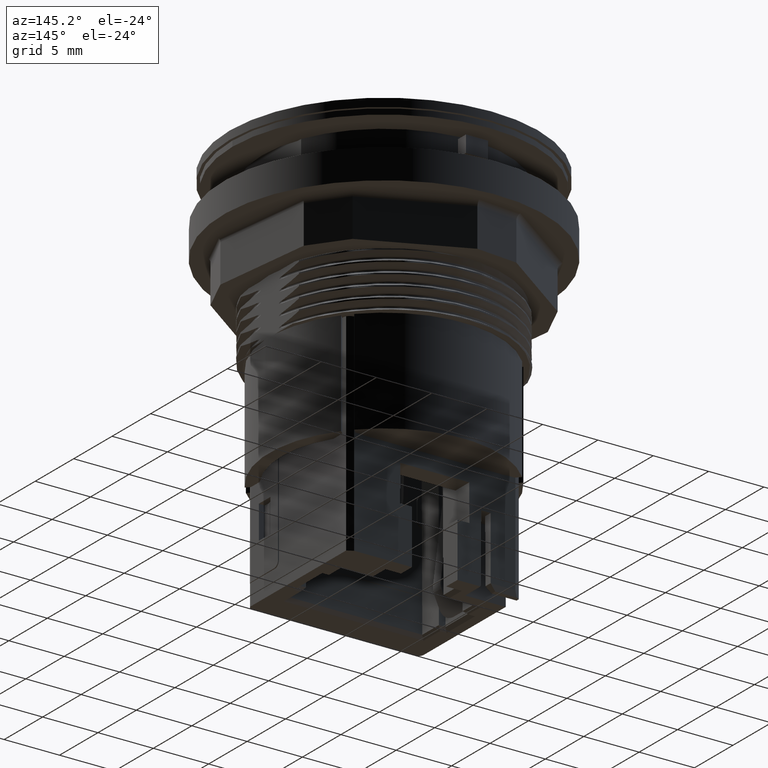
[diagram: clean part render]
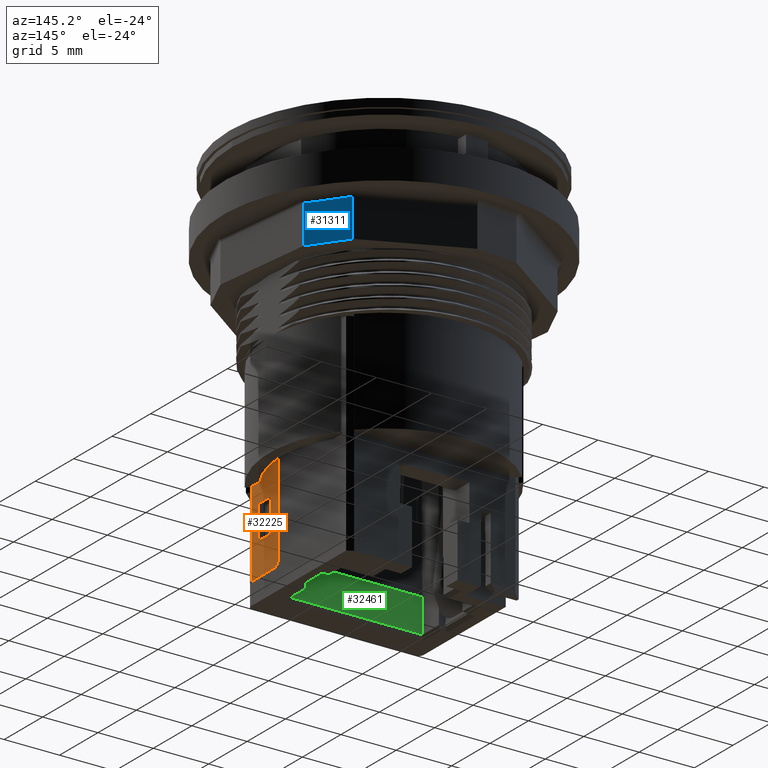
[diagram: same view with three faces highlighted in distinct colors, each labeled with its STEP entity id]
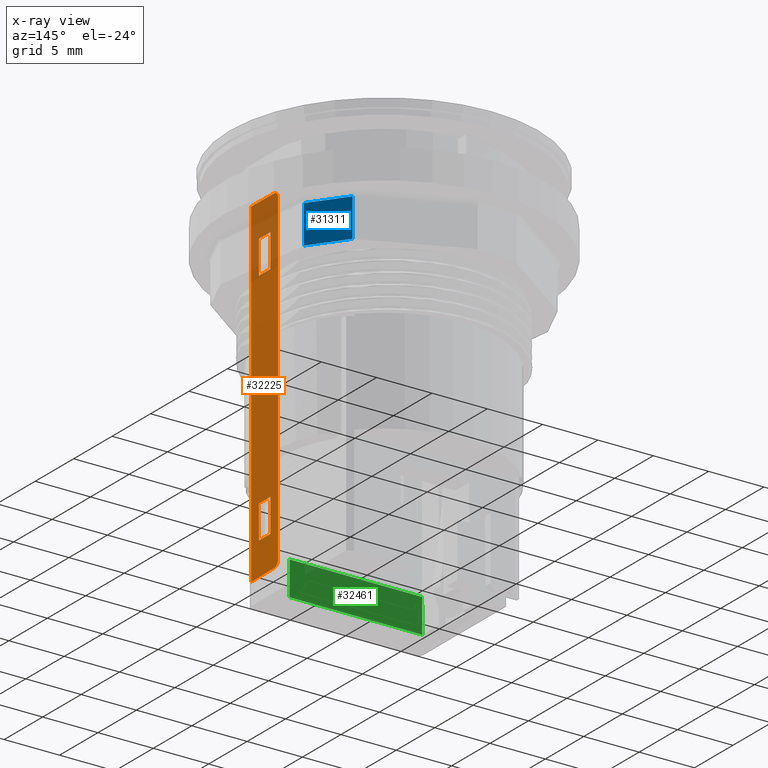
[diagram: x-ray of the same camera — body ghosted, the three highlighted faces saturated]
A machine part, auxiliary view with three faces highlighted in distinct colors.
The next image is the same camera in x-ray (body ghosted, the three faces saturated) — at least one of them is partly hidden behind the body in this view.
Their STEP definitions:

[orange] entity #32225 — the highlighted planar face has unit normal (1, -0, 0).
#517=FACE_BOUND('',#4395,.T.);
#518=FACE_BOUND('',#4396,.T.);
#1653=CIRCLE('',#34652,0.0499999999999999);
#1654=CIRCLE('',#34655,0.05);
#2798=FACE_OUTER_BOUND('',#4394,.T.);
#4394=EDGE_LOOP('',(#25169,#25170,#25171,#25172,#25173,#25174));
#4395=EDGE_LOOP('',(#25175,#25176,#25177,#25178));
#4396=EDGE_LOOP('',(#25179,#25180,#25181,#25182));
#5252=LINE('',#44375,#8601);
#7339=LINE('',#50004,#10688);
#7355=LINE('',#50038,#10704);
#7410=LINE('',#50160,#10759);
#7423=LINE('',#50187,#10772);
#7431=LINE('',#50200,#10780);
#7432=LINE('',#50203,#10781);
#7433=LINE('',#50205,#10782);
#7434=LINE('',#50206,#10783);
#7435=LINE('',#50208,#10784);
#7436=LINE('',#50210,#10785);
#7437=LINE('',#50211,#10786);
#8601=VECTOR('',#35905,0.1);
#10688=VECTOR('',#41218,0.1);
#10704=VECTOR('',#41238,0.1);
#10759=VECTOR('',#41331,0.1);
#10772=VECTOR('',#41356,0.1);
#10780=VECTOR('',#41366,0.1);
#10781=VECTOR('',#41369,0.1);
#10782=VECTOR('',#41370,0.1);
#10783=VECTOR('',#41371,0.1);
#10784=VECTOR('',#41372,0.1);
#10785=VECTOR('',#41373,0.1);
#10786=VECTOR('',#41374,0.1);
#11944=VERTEX_POINT('',#44372);
#11945=VERTEX_POINT('',#44374);
#13833=VERTEX_POINT('',#50001);
#13834=VERTEX_POINT('',#50003);
#13849=VERTEX_POINT('',#50035);
#13850=VERTEX_POINT('',#50037);
#13897=VERTEX_POINT('',#50157);
#13898=VERTEX_POINT('',#50159);
#13905=VERTEX_POINT('',#50182);
#13906=VERTEX_POINT('',#50186);
#13911=VERTEX_POINT('',#50202);
#13912=VERTEX_POINT('',#50204);
#13913=VERTEX_POINT('',#50207);
#13914=VERTEX_POINT('',#50209);
#14995=EDGE_CURVE('',#11945,#11944,#5252,.F.);
#17837=EDGE_CURVE('',#13834,#13833,#7339,.T.);
#17853=EDGE_CURVE('',#13850,#13849,#7355,.T.);
#17918=EDGE_CURVE('',#13897,#13898,#7410,.T.);
#17932=EDGE_CURVE('',#13898,#13905,#1653,.T.);
#17934=EDGE_CURVE('',#13906,#13905,#7423,.T.);
#17942=EDGE_CURVE('',#11945,#13897,#7431,.T.);
#17943=EDGE_CURVE('',#13906,#11944,#1654,.T.);
#17944=EDGE_CURVE('',#13849,#13911,#7432,.T.);
#17945=EDGE_CURVE('',#13911,#13912,#7433,.T.);
#17946=EDGE_CURVE('',#13912,#13850,#7434,.T.);
#17947=EDGE_CURVE('',#13833,#13913,#7435,.T.);
#17948=EDGE_CURVE('',#13913,#13914,#7436,.T.);
#17949=EDGE_CURVE('',#13914,#13834,#7437,.T.);
#25169=ORIENTED_EDGE('',*,*,#17932,.F.);
#25170=ORIENTED_EDGE('',*,*,#17918,.F.);
#25171=ORIENTED_EDGE('',*,*,#17942,.F.);
#25172=ORIENTED_EDGE('',*,*,#14995,.T.);
#25173=ORIENTED_EDGE('',*,*,#17943,.F.);
#25174=ORIENTED_EDGE('',*,*,#17934,.T.);
#25175=ORIENTED_EDGE('',*,*,#17944,.T.);
#25176=ORIENTED_EDGE('',*,*,#17945,.T.);
#25177=ORIENTED_EDGE('',*,*,#17946,.T.);
#25178=ORIENTED_EDGE('',*,*,#17853,.T.);
#25179=ORIENTED_EDGE('',*,*,#17837,.T.);
#25180=ORIENTED_EDGE('',*,*,#17947,.T.);
#25181=ORIENTED_EDGE('',*,*,#17948,.T.);
#25182=ORIENTED_EDGE('',*,*,#17949,.T.);
#29269=PLANE('',#34654);
#32225=ADVANCED_FACE('',(#2798,#517,#518),#29269,.T.);
#34652=AXIS2_PLACEMENT_3D('',#50183,#41351,#41352);
#34654=AXIS2_PLACEMENT_3D('',#50199,#41364,#41365);
#34655=AXIS2_PLACEMENT_3D('',#50201,#41367,#41368);
#35905=DIRECTION('',(-4.48894276560662E-16,-0.999961923064171,-0.00872653549837406));
#41218=DIRECTION('',(2.21909564731641E-16,6.12303176911179E-17,-1.));
#41238=DIRECTION('',(2.21909564731641E-16,6.12303176911179E-17,-1.));
#41331=DIRECTION('',(4.52767279948782E-16,0.999961923064171,-0.00872653549838045));
#41351=DIRECTION('center_axis',(-1.,4.50847945162998E-16,-2.21909564731641E-16));
#41352=DIRECTION('ref_axis',(1.63958016215885E-16,0.710185375623293,0.70401472445596));
#41356=DIRECTION('',(-2.21909564731641E-16,-6.12303176911179E-17,1.));
#41364=DIRECTION('center_axis',(1.,-4.50847945162998E-16,2.21909564731641E-16));
#41365=DIRECTION('ref_axis',(4.50847945162998E-16,1.,6.1230317691118E-17));
#41366=DIRECTION('',(-2.21909564731641E-16,-6.12303176911179E-17,1.));
#41367=DIRECTION('center_axis',(-1.,4.50847945162998E-16,-2.21909564731641E-16));
#41368=DIRECTION('ref_axis',(4.7641321835326E-16,0.710185375623285,-0.704014724455969));
#41369=DIRECTION('',(-4.50847945162998E-16,-1.,-6.1230317691118E-17));
#41370=DIRECTION('',(-2.21909564731641E-16,-6.12303176911179E-17,1.));
#41371=DIRECTION('',(4.50847945162998E-16,1.,6.1230317691118E-17));
#41372=DIRECTION('',(-4.50847945162998E-16,-1.,-6.1230317691118E-17));
#41373=DIRECTION('',(-2.21909564731641E-16,-6.12303176911179E-17,1.));
#41374=DIRECTION('',(4.50847945162998E-16,1.,6.1230317691118E-17));
#44372=CARTESIAN_POINT('',(0.780000000000011,-0.304813673225081,-2.34194178850715));
#44374=CARTESIAN_POINT('',(0.780000000000011,-0.605250000000001,-2.34456365661046));
#44375=CARTESIAN_POINT('',(0.780000000000011,-0.304813673225081,-2.34194178850715));
#50001=CARTESIAN_POINT('',(0.78000000000001,-0.35525,-2.045));
#50003=CARTESIAN_POINT('',(0.78000000000001,-0.35525,-1.74499999999999));
#50004=CARTESIAN_POINT('',(0.78000000000001,-0.35525,-1.74499999999999));
#50035=CARTESIAN_POINT('',(0.780000000000012,-0.35525,0.105000000000006));
#50037=CARTESIAN_POINT('',(0.780000000000011,-0.35525,0.405000000000006));
#50038=CARTESIAN_POINT('',(0.780000000000011,-0.35525,0.405000000000006));
#50157=CARTESIAN_POINT('',(0.780000000000011,-0.60525,0.70456365661047));
#50159=CARTESIAN_POINT('',(0.780000000000011,-0.304813673225082,0.701941788507163));
#50160=CARTESIAN_POINT('',(0.780000000000011,-0.60525,0.70456365661047));
#50182=CARTESIAN_POINT('',(0.780000000000012,-0.255250000000001,0.651943692353954));
#50183=CARTESIAN_POINT('Origin',(0.780000000000011,-0.305250000000001,0.651943692353954));
#50186=CARTESIAN_POINT('',(0.780000000000012,-0.25525,-2.29194369235394));
#50187=CARTESIAN_POINT('',(0.780000000000012,-0.25525,-2.29194369235394));
#50199=CARTESIAN_POINT('Origin',(0.780000000000011,-0.65525,-2.345));
#50200=CARTESIAN_POINT('',(0.780000000000011,-0.605250000000001,-2.34456365661046));
#50201=CARTESIAN_POINT('Origin',(0.780000000000012,-0.30525,-2.29194369235394));
#50202=CARTESIAN_POINT('',(0.780000000000012,-0.50525,0.105000000000006));
#50203=CARTESIAN_POINT('',(0.780000000000012,-0.35525,0.105000000000006));
#50204=CARTESIAN_POINT('',(0.780000000000011,-0.50525,0.405000000000006));
#50205=CARTESIAN_POINT('',(0.780000000000012,-0.50525,0.105000000000006));
#50206=CARTESIAN_POINT('',(0.780000000000011,-0.50525,0.405000000000006));
#50207=CARTESIAN_POINT('',(0.78000000000001,-0.50525,-2.045));
#50208=CARTESIAN_POINT('',(0.78000000000001,-0.35525,-2.045));
#50209=CARTESIAN_POINT('',(0.78000000000001,-0.50525,-1.74499999999999));
#50210=CARTESIAN_POINT('',(0.78000000000001,-0.50525,-2.045));
#50211=CARTESIAN_POINT('',(0.78000000000001,-0.50525,-1.74499999999999));

[blue] entity #31311 — the highlighted planar face has unit normal (0.8064, 0.5914, 0).
#1884=FACE_OUTER_BOUND('',#3462,.T.);
#3462=EDGE_LOOP('',(#19539,#19540,#19541,#19542));
#5079=LINE('',#43934,#8428);
#5112=LINE('',#44041,#8461);
#5113=LINE('',#44044,#8462);
#5114=LINE('',#44045,#8463);
#8428=VECTOR('',#35522,1.);
#8461=VECTOR('',#35639,1.);
#8462=VECTOR('',#35642,1.);
#8463=VECTOR('',#35643,1.);
#11780=VERTEX_POINT('',#43926);
#11782=VERTEX_POINT('',#43932);
#11814=VERTEX_POINT('',#44039);
#11815=VERTEX_POINT('',#44043);
#14778=EDGE_CURVE('',#11782,#11780,#5079,.T.);
#14830=EDGE_CURVE('',#11782,#11814,#5112,.T.);
#14831=EDGE_CURVE('',#11814,#11815,#5113,.T.);
#14832=EDGE_CURVE('',#11780,#11815,#5114,.T.);
#19539=ORIENTED_EDGE('',*,*,#14778,.F.);
#19540=ORIENTED_EDGE('',*,*,#14830,.T.);
#19541=ORIENTED_EDGE('',*,*,#14831,.T.);
#19542=ORIENTED_EDGE('',*,*,#14832,.F.);
#28611=PLANE('',#32951);
#31311=ADVANCED_FACE('',(#1884),#28611,.T.);
#32951=AXIS2_PLACEMENT_3D('',#44042,#35640,#35641);
#35522=DIRECTION('',(-0.591402186731184,0.806376744164645,-1.78269684697872E-16));
#35639=DIRECTION('',(4.41444142943742E-16,1.02683202805542E-16,-1.));
#35640=DIRECTION('center_axis',(0.806376744164645,0.591402186731184,4.16697361397286E-16));
#35641=DIRECTION('ref_axis',(-0.591402186731184,0.806376744164645,-1.78269684697872E-16));
#35642=DIRECTION('',(-0.591402186731184,0.806376744164645,-1.78269684697872E-16));
#35643=DIRECTION('',(4.41444142943742E-16,1.02683202805542E-16,-1.));
#43926=CARTESIAN_POINT('',(0.914796860440412,0.90856797313511,0.200000000000002));
#43932=CARTESIAN_POINT('',(1.14146383717944,0.599507603029412,0.200000000000002));
#43934=CARTESIAN_POINT('',(1.08479709299468,0.676772695555837,0.200000000000002));
#44039=CARTESIAN_POINT('',(1.14146383717944,0.599507603029412,-0.144999999999998));
#44041=CARTESIAN_POINT('',(1.14146383717944,0.599507603029412,0.255000000000002));
#44042=CARTESIAN_POINT('Origin',(1.14146383717944,0.599507603029412,0.255000000000002));
#44043=CARTESIAN_POINT('',(0.914796860440412,0.90856797313511,-0.144999999999999));
#44044=CARTESIAN_POINT('',(0.914796860440412,0.90856797313511,-0.144999999999999));
#44045=CARTESIAN_POINT('',(0.914796860440412,0.90856797313511,0.255000000000002));

[green] entity #32461 — the highlighted planar face has unit normal (-0, -1, -0).
#3034=FACE_OUTER_BOUND('',#4643,.T.);
#4643=EDGE_LOOP('',(#26434,#26435,#26436,#26437));
#6161=LINE('',#46758,#9510);
#7620=LINE('',#50631,#10969);
#7927=LINE('',#51278,#11276);
#7958=LINE('',#51340,#11307);
#9510=VECTOR('',#38014,0.1);
#10969=VECTOR('',#41797,0.1);
#11276=VECTOR('',#42392,0.1);
#11307=VECTOR('',#42465,0.1);
#12778=VERTEX_POINT('',#46755);
#12779=VERTEX_POINT('',#46757);
#13998=VERTEX_POINT('',#50528);
#14031=VERTEX_POINT('',#50630);
#16181=EDGE_CURVE('',#12779,#12778,#6161,.T.);
#18158=EDGE_CURVE('',#12779,#14031,#7620,.T.);
#18489=EDGE_CURVE('',#12778,#13998,#7927,.F.);
#18520=EDGE_CURVE('',#14031,#13998,#7958,.F.);
#26434=ORIENTED_EDGE('',*,*,#18158,.F.);
#26435=ORIENTED_EDGE('',*,*,#16181,.T.);
#26436=ORIENTED_EDGE('',*,*,#18489,.T.);
#26437=ORIENTED_EDGE('',*,*,#18520,.F.);
#29479=PLANE('',#34941);
#32461=ADVANCED_FACE('',(#3034),#29479,.F.);
#34941=AXIS2_PLACEMENT_3D('',#51341,#42466,#42467);
#38014=DIRECTION('',(0.00436330928474609,-6.37312751226881E-17,0.999990480720734));
#41797=DIRECTION('',(0.999999999999972,-5.73312610502825E-16,-2.38033911814682E-7));
#42392=DIRECTION('',(-1.,5.73312625077733E-16,1.35040193390471E-19));
#42465=DIRECTION('',(0.00436330928474714,5.87281945225599E-17,-0.999990480720734));
#42466=DIRECTION('center_axis',(-5.73312625077733E-16,-1.,-6.1230317691118E-17));
#42467=DIRECTION('ref_axis',(-1.35040193390436E-19,6.1230317691118E-17,
-1.));
#46755=CARTESIAN_POINT('',(-0.598531042581765,-0.36525,-2.20334189511975));
#46757=CARTESIAN_POINT('',(-0.599869099516219,-0.365250000024783,-2.51000000004136));
#46758=CARTESIAN_POINT('',(-0.599869099475368,-0.36525,-2.51));
#50528=CARTESIAN_POINT('',(0.598531042581786,-0.36525,-2.20334189511975));
#50630=CARTESIAN_POINT('',(0.599869100704345,-0.365250000007132,-2.51000028553951));
#50631=CARTESIAN_POINT('',(-0.599869099475368,-0.36525,-2.51));
#51278=CARTESIAN_POINT('',(0.598531042581786,-0.36525,-2.20334189511975));
#51340=CARTESIAN_POINT('',(0.598531042581786,-0.36525,-2.20334189511975));
#51341=CARTESIAN_POINT('Origin',(-0.65985600948521,-0.36525,-2.18800897559682));